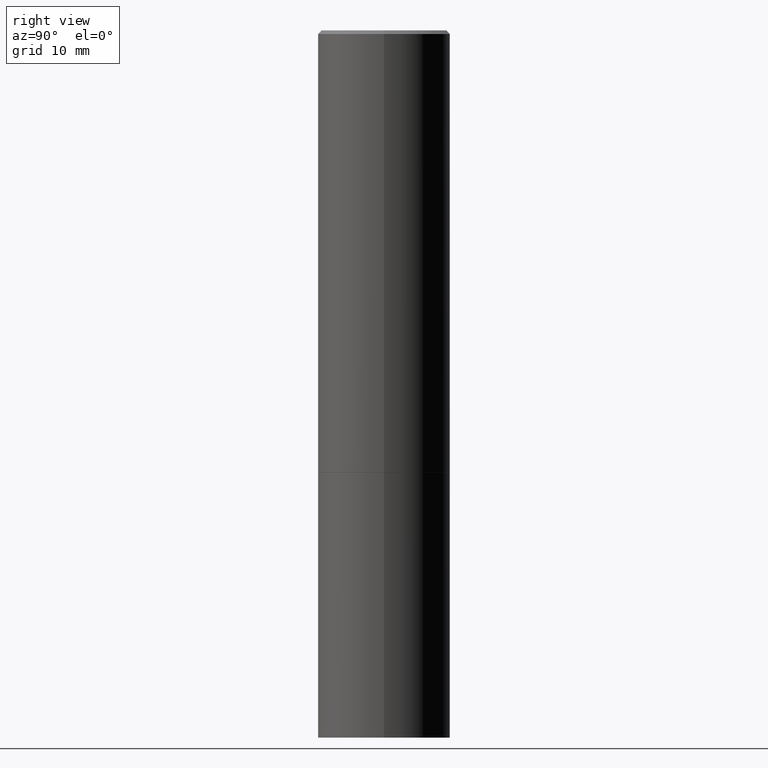
[diagram: clean part render]
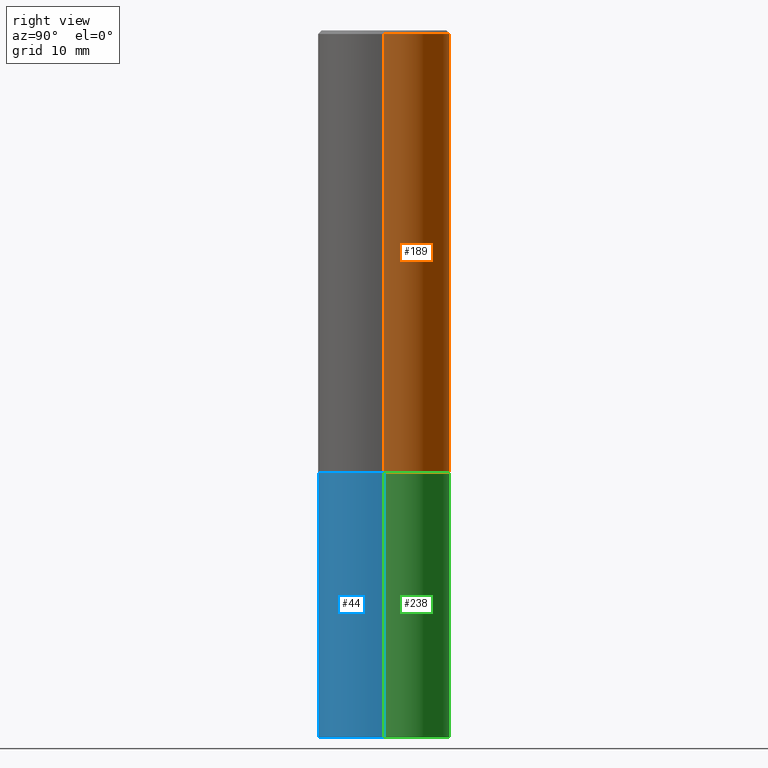
[diagram: same view with three faces highlighted in distinct colors, each labeled with its STEP entity id]
A machine part, right view with three faces highlighted in distinct colors.
Their STEP definitions:

[orange] entity #189 — the highlighted cylindrical surface (partial cylindrical patch) has radius 9.525 mm, axis along (-0, 0, 1).
#1 = CIRCLE ( 'NONE', #192, 0.3749999999999997780 ) ;
#2 = EDGE_CURVE ( 'NONE', #250, #134, #180, .T. ) ;
#20 = FACE_OUTER_BOUND ( 'NONE', #175, .T. ) ;
#22 = CYLINDRICAL_SURFACE ( 'NONE', #310, 0.3749999999999998890 ) ;
#32 = EDGE_CURVE ( 'NONE', #250, #35, #308, .T. ) ;
#35 = VERTEX_POINT ( 'NONE', #137 ) ;
#42 = CARTESIAN_POINT ( 'NONE',  ( 6.111226546656657010E-29, -8.725211865769021935E-15, -2.499000000000000110 ) ) ;
#46 = DIRECTION ( 'NONE',  ( -2.445468806185136597E-29, 3.491481338843145583E-15, 1.000000000000000000 ) ) ;
#48 = CARTESIAN_POINT ( 'NONE',  ( -0.3749999999999998890, 2.664535259100374908E-15, -1.844600658845589038E-29 ) ) ;
#63 = CARTESIAN_POINT ( 'NONE',  ( 0.000000000000000000, 0.000000000000000000, 0.000000000000000000 ) ) ;
#64 = CARTESIAN_POINT ( 'NONE',  ( 0.3750000000000000555, -1.134382286990137195E-14, -2.499000000000000110 ) ) ;
#79 = VECTOR ( 'NONE', #88, 39.37007874015748143 ) ;
#88 = DIRECTION ( 'NONE',  ( -2.445468806185136877E-29, 3.491481338843145188E-15, 1.000000000000000000 ) ) ;
#95 = LINE ( 'NONE', #48, #102 ) ;
#102 = VECTOR ( 'NONE', #377, 39.37007874015748143 ) ;
#114 = ORIENTED_EDGE ( 'NONE', *, *, #359, .F. ) ;
#115 = DIRECTION ( 'NONE',  ( 1.000000000000000000, -6.982962677686266711E-15, 4.876176775795935793E-29 ) ) ;
#134 = VERTEX_POINT ( 'NONE', #365 ) ;
#137 = CARTESIAN_POINT ( 'NONE',  ( -0.3750000000000000555, -1.732985487172564750E-15, -2.499000000000000110 ) ) ;
#138 = EDGE_CURVE ( 'NONE', #35, #224, #95, .T. ) ;
#161 = CARTESIAN_POINT ( 'NONE',  ( 4.890937612370297681E-31, -6.982962677686324889E-17, -0.02000000000000009756 ) ) ;
#175 = EDGE_LOOP ( 'NONE', ( #231, #279, #114, #284 ) ) ;
#180 = LINE ( 'NONE', #298, #79 ) ;
#189 = ADVANCED_FACE ( 'NONE', ( #20 ), #22, .T. ) ;
#192 = AXIS2_PLACEMENT_3D ( 'NONE', #161, #225, #373 ) ;
#224 = VERTEX_POINT ( 'NONE', #345 ) ;
#225 = DIRECTION ( 'NONE',  ( -2.445468806185136597E-29, 3.491481338843145583E-15, 1.000000000000000000 ) ) ;
#231 = ORIENTED_EDGE ( 'NONE', *, *, #32, .T. ) ;
#250 = VERTEX_POINT ( 'NONE', #64 ) ;
#273 = DIRECTION ( 'NONE',  ( -2.445468806185136597E-29, 3.491481338843145583E-15, 1.000000000000000000 ) ) ;
#279 = ORIENTED_EDGE ( 'NONE', *, *, #138, .T. ) ;
#284 = ORIENTED_EDGE ( 'NONE', *, *, #2, .F. ) ;
#298 = CARTESIAN_POINT ( 'NONE',  ( 0.3749999999999998890, -2.618611004132349228E-15, 1.828566290923475362E-29 ) ) ;
#308 = CIRCLE ( 'NONE', #361, 0.3750000000000000555 ) ;
#310 = AXIS2_PLACEMENT_3D ( 'NONE', #63, #273, #115 ) ;
#345 = CARTESIAN_POINT ( 'NONE',  ( -0.3749999999999997780, 2.548781377355484746E-15, -0.02000000000000009756 ) ) ;
#352 = DIRECTION ( 'NONE',  ( 1.000000000000000000, -6.982962677686264344E-15, 0.000000000000000000 ) ) ;
#359 = EDGE_CURVE ( 'NONE', #134, #224, #1, .T. ) ;
#361 = AXIS2_PLACEMENT_3D ( 'NONE', #42, #46, #352 ) ;
#365 = CARTESIAN_POINT ( 'NONE',  ( 0.3749999999999997780, -2.642516375941186056E-15, -0.02000000000000009756 ) ) ;
#373 = DIRECTION ( 'NONE',  ( 1.000000000000000000, -6.982962677686265922E-15, 0.000000000000000000 ) ) ;
#377 = DIRECTION ( 'NONE',  ( -2.445468806185136877E-29, 3.491481338843145188E-15, 1.000000000000000000 ) ) ;

[blue] entity #44 — the highlighted cylindrical surface (partial cylindrical patch) has radius 9.525 mm, axis along (-0, 0, 1).
#9 = VERTEX_POINT ( 'NONE', #215 ) ;
#11 = VERTEX_POINT ( 'NONE', #235 ) ;
#13 = DIRECTION ( 'NONE',  ( -2.445468806185136597E-29, 3.491481338843145583E-15, 1.000000000000000000 ) ) ;
#23 = DIRECTION ( 'NONE',  ( -2.445468806185136597E-29, 3.491481338843145583E-15, 1.000000000000000000 ) ) ;
#29 = CARTESIAN_POINT ( 'NONE',  ( 0.3750000000000000555, -2.618611004132350016E-15, 1.828566290923476203E-29 ) ) ;
#37 = AXIS2_PLACEMENT_3D ( 'NONE', #89, #13, #297 ) ;
#44 = ADVANCED_FACE ( 'NONE', ( #60 ), #202, .T. ) ;
#52 = CARTESIAN_POINT ( 'NONE',  ( 9.781875224740546387E-29, -1.396592535537258233E-14, -4.000000000000000000 ) ) ;
#60 = FACE_OUTER_BOUND ( 'NONE', #304, .T. ) ;
#89 = CARTESIAN_POINT ( 'NONE',  ( 6.113672015462842613E-29, -8.728703347107864943E-15, -2.500000000000000000 ) ) ;
#92 = VECTOR ( 'NONE', #179, 39.37007874015748143 ) ;
#97 = LINE ( 'NONE', #29, #182 ) ;
#104 = ORIENTED_EDGE ( 'NONE', *, *, #173, .T. ) ;
#136 = CARTESIAN_POINT ( 'NONE',  ( -0.3750000000000001665, -1.134731435124022916E-14, -4.000000000000000000 ) ) ;
#140 = CIRCLE ( 'NONE', #37, 0.3750000000000000555 ) ;
#149 = DIRECTION ( 'NONE',  ( -2.445468806185136597E-29, 3.491481338843145583E-15, 1.000000000000000000 ) ) ;
#165 = EDGE_CURVE ( 'NONE', #167, #9, #263, .T. ) ;
#167 = VERTEX_POINT ( 'NONE', #136 ) ;
#172 = CARTESIAN_POINT ( 'NONE',  ( 0.000000000000000000, 0.000000000000000000, 0.000000000000000000 ) ) ;
#173 = EDGE_CURVE ( 'NONE', #167, #191, #324, .T. ) ;
#176 = EDGE_CURVE ( 'NONE', #9, #11, #140, .T. ) ;
#179 = DIRECTION ( 'NONE',  ( -2.445468806185136877E-29, 3.491481338843145188E-15, 1.000000000000000000 ) ) ;
#182 = VECTOR ( 'NONE', #246, 39.37007874015748143 ) ;
#191 = VERTEX_POINT ( 'NONE', #206 ) ;
#202 = CYLINDRICAL_SURFACE ( 'NONE', #340, 0.3750000000000000555 ) ;
#206 = CARTESIAN_POINT ( 'NONE',  ( 0.3750000000000001665, -1.653861210453690509E-14, -4.000000000000000000 ) ) ;
#215 = CARTESIAN_POINT ( 'NONE',  ( -0.3750000000000000555, -8.682779092139847151E-15, -2.500000000000000000 ) ) ;
#235 = CARTESIAN_POINT ( 'NONE',  ( 0.3750000000000000555, -1.134731435124021338E-14, -2.500000000000000000 ) ) ;
#246 = DIRECTION ( 'NONE',  ( -2.445468806185136877E-29, 3.491481338843145188E-15, 1.000000000000000000 ) ) ;
#253 = ORIENTED_EDGE ( 'NONE', *, *, #176, .F. ) ;
#263 = LINE ( 'NONE', #385, #92 ) ;
#268 = DIRECTION ( 'NONE',  ( 1.000000000000000000, -6.982962677686266711E-15, 0.000000000000000000 ) ) ;
#295 = DIRECTION ( 'NONE',  ( 1.000000000000000000, -6.982962677686265922E-15, 4.876176775795935793E-29 ) ) ;
#297 = DIRECTION ( 'NONE',  ( 1.000000000000000000, -6.982962677686264344E-15, 0.000000000000000000 ) ) ;
#300 = AXIS2_PLACEMENT_3D ( 'NONE', #52, #149, #268 ) ;
#304 = EDGE_LOOP ( 'NONE', ( #335, #104, #350, #253 ) ) ;
#324 = CIRCLE ( 'NONE', #300, 0.3750000000000000555 ) ;
#328 = EDGE_CURVE ( 'NONE', #191, #11, #97, .T. ) ;
#335 = ORIENTED_EDGE ( 'NONE', *, *, #165, .F. ) ;
#340 = AXIS2_PLACEMENT_3D ( 'NONE', #172, #23, #295 ) ;
#350 = ORIENTED_EDGE ( 'NONE', *, *, #328, .T. ) ;
#385 = CARTESIAN_POINT ( 'NONE',  ( -0.3750000000000000555, 2.664535259100376091E-15, -1.844600658845589598E-29 ) ) ;

[green] entity #238 — the highlighted cylindrical surface (partial cylindrical patch) has radius 9.525 mm, axis along (-0, 0, 1).
#9 = VERTEX_POINT ( 'NONE', #215 ) ;
#11 = VERTEX_POINT ( 'NONE', #235 ) ;
#29 = CARTESIAN_POINT ( 'NONE',  ( 0.3750000000000000555, -2.618611004132350016E-15, 1.828566290923476203E-29 ) ) ;
#33 = DIRECTION ( 'NONE',  ( -2.445468806185136597E-29, 3.491481338843145583E-15, 1.000000000000000000 ) ) ;
#36 = ORIENTED_EDGE ( 'NONE', *, *, #165, .T. ) ;
#65 = AXIS2_PLACEMENT_3D ( 'NONE', #85, #151, #214 ) ;
#85 = CARTESIAN_POINT ( 'NONE',  ( 9.781875224740546387E-29, -1.396592535537258233E-14, -4.000000000000000000 ) ) ;
#92 = VECTOR ( 'NONE', #179, 39.37007874015748143 ) ;
#97 = LINE ( 'NONE', #29, #182 ) ;
#125 = ORIENTED_EDGE ( 'NONE', *, *, #286, .F. ) ;
#136 = CARTESIAN_POINT ( 'NONE',  ( -0.3750000000000001665, -1.134731435124022916E-14, -4.000000000000000000 ) ) ;
#141 = AXIS2_PLACEMENT_3D ( 'NONE', #187, #33, #160 ) ;
#148 = EDGE_LOOP ( 'NONE', ( #256, #36, #125, #228 ) ) ;
#151 = DIRECTION ( 'NONE',  ( -2.445468806185136597E-29, 3.491481338843145583E-15, 1.000000000000000000 ) ) ;
#157 = FACE_OUTER_BOUND ( 'NONE', #148, .T. ) ;
#160 = DIRECTION ( 'NONE',  ( 1.000000000000000000, -6.982962677686265922E-15, 4.876176775795935793E-29 ) ) ;
#165 = EDGE_CURVE ( 'NONE', #167, #9, #263, .T. ) ;
#167 = VERTEX_POINT ( 'NONE', #136 ) ;
#179 = DIRECTION ( 'NONE',  ( -2.445468806185136877E-29, 3.491481338843145188E-15, 1.000000000000000000 ) ) ;
#182 = VECTOR ( 'NONE', #246, 39.37007874015748143 ) ;
#183 = CARTESIAN_POINT ( 'NONE',  ( 6.113672015462842613E-29, -8.728703347107864943E-15, -2.500000000000000000 ) ) ;
#187 = CARTESIAN_POINT ( 'NONE',  ( 0.000000000000000000, 0.000000000000000000, 0.000000000000000000 ) ) ;
#191 = VERTEX_POINT ( 'NONE', #206 ) ;
#206 = CARTESIAN_POINT ( 'NONE',  ( 0.3750000000000001665, -1.653861210453690509E-14, -4.000000000000000000 ) ) ;
#214 = DIRECTION ( 'NONE',  ( 1.000000000000000000, -6.982962677686266711E-15, 0.000000000000000000 ) ) ;
#215 = CARTESIAN_POINT ( 'NONE',  ( -0.3750000000000000555, -8.682779092139847151E-15, -2.500000000000000000 ) ) ;
#219 = EDGE_CURVE ( 'NONE', #191, #167, #255, .T. ) ;
#221 = AXIS2_PLACEMENT_3D ( 'NONE', #183, #266, #239 ) ;
#228 = ORIENTED_EDGE ( 'NONE', *, *, #328, .F. ) ;
#235 = CARTESIAN_POINT ( 'NONE',  ( 0.3750000000000000555, -1.134731435124021338E-14, -2.500000000000000000 ) ) ;
#238 = ADVANCED_FACE ( 'NONE', ( #157 ), #360, .T. ) ;
#239 = DIRECTION ( 'NONE',  ( 1.000000000000000000, -6.982962677686264344E-15, 0.000000000000000000 ) ) ;
#246 = DIRECTION ( 'NONE',  ( -2.445468806185136877E-29, 3.491481338843145188E-15, 1.000000000000000000 ) ) ;
#255 = CIRCLE ( 'NONE', #65, 0.3750000000000000555 ) ;
#256 = ORIENTED_EDGE ( 'NONE', *, *, #219, .T. ) ;
#263 = LINE ( 'NONE', #385, #92 ) ;
#266 = DIRECTION ( 'NONE',  ( -2.445468806185136597E-29, 3.491481338843145583E-15, 1.000000000000000000 ) ) ;
#286 = EDGE_CURVE ( 'NONE', #11, #9, #362, .T. ) ;
#328 = EDGE_CURVE ( 'NONE', #191, #11, #97, .T. ) ;
#360 = CYLINDRICAL_SURFACE ( 'NONE', #141, 0.3750000000000000555 ) ;
#362 = CIRCLE ( 'NONE', #221, 0.3750000000000000555 ) ;
#385 = CARTESIAN_POINT ( 'NONE',  ( -0.3750000000000000555, 2.664535259100376091E-15, -1.844600658845589598E-29 ) ) ;